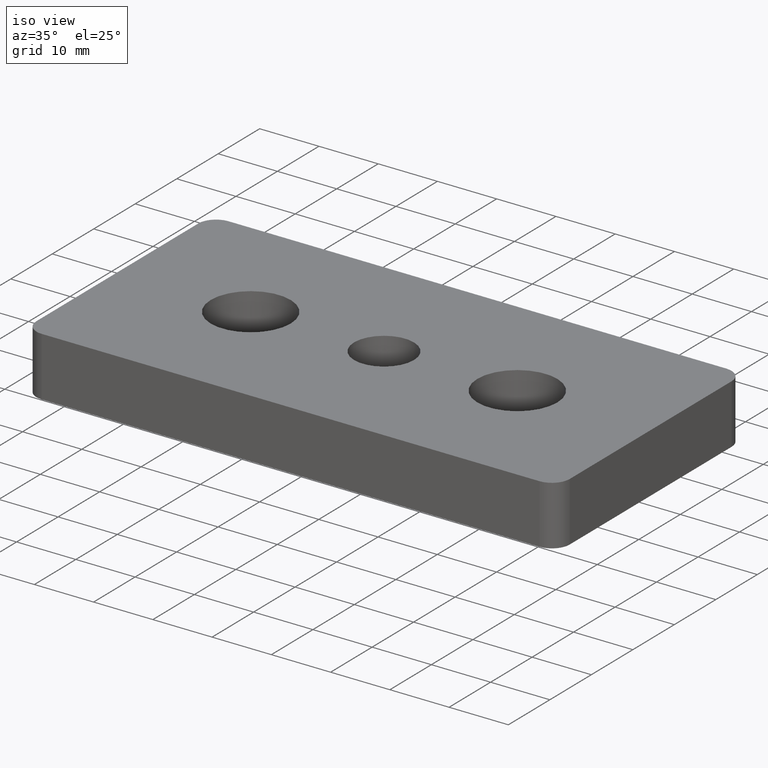
[diagram: clean part render]
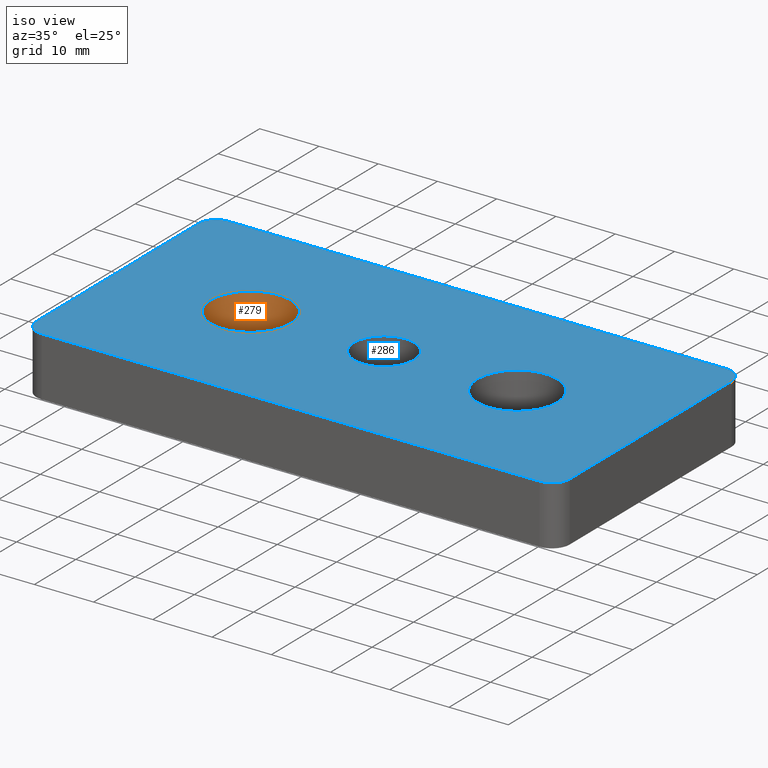
[diagram: same view with the hole feature highlighted: cylindrical wall and planar end face, labeled with their STEP entity ids]
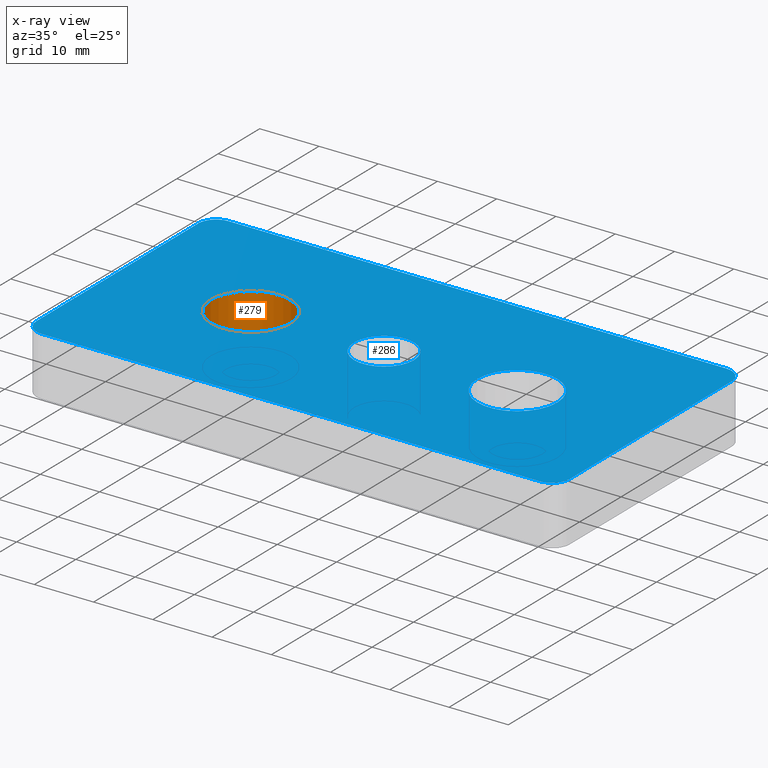
[diagram: x-ray of the same camera — body ghosted, the hole faces saturated]
A machine part, iso view. The highlighted faces form one hole feature of diameter 13.5 mm: the cylindrical wall (entity #279, orange) and its adjacent planar end face (entity #286, blue) — they share a circular edge in the B-rep.
The next image is the same camera in x-ray (body ghosted, the hole faces saturated) — the bore reads through the body.
Wall:
#19=FACE_BOUND('',#67,.T.);
#45=FACE_OUTER_BOUND('',#66,.T.);
#66=EDGE_LOOP('',(#234));
#67=EDGE_LOOP('',(#235));
#126=CIRCLE('',#309,6.75);
#128=CIRCLE('',#312,6.75);
#152=VERTEX_POINT('',#467);
#154=VERTEX_POINT('',#472);
#185=EDGE_CURVE('',#152,#152,#126,.T.);
#187=EDGE_CURVE('',#154,#154,#128,.T.);
#234=ORIENTED_EDGE('',*,*,#187,.F.);
#235=ORIENTED_EDGE('',*,*,#185,.F.);
#265=CYLINDRICAL_SURFACE('',#311,6.75);
#279=ADVANCED_FACE('',(#45,#19),#265,.F.);
#309=AXIS2_PLACEMENT_3D('',#468,#381,#382);
#311=AXIS2_PLACEMENT_3D('',#471,#385,#386);
#312=AXIS2_PLACEMENT_3D('',#473,#387,#388);
#381=DIRECTION('center_axis',(0.,0.,1.));
#382=DIRECTION('ref_axis',(1.,0.,0.));
#385=DIRECTION('center_axis',(0.,0.,1.));
#386=DIRECTION('ref_axis',(1.,0.,0.));
#387=DIRECTION('center_axis',(0.,0.,-1.));
#388=DIRECTION('ref_axis',(1.,0.,0.));
#467=CARTESIAN_POINT('',(-15.75,0.,1.5));
#468=CARTESIAN_POINT('Origin',(-22.5,0.,1.5));
#471=CARTESIAN_POINT('Origin',(-22.5,0.,5.75));
#472=CARTESIAN_POINT('',(-15.75,0.,10.));
#473=CARTESIAN_POINT('Origin',(-22.5,0.,10.));
End face:
#25=FACE_BOUND('',#80,.T.);
#26=FACE_BOUND('',#81,.T.);
#27=FACE_BOUND('',#82,.T.);
#35=PLANE('',#323);
#52=FACE_OUTER_BOUND('',#79,.T.);
#79=EDGE_LOOP('',(#250,#251,#252,#253,#254,#255,#256,#257));
#80=EDGE_LOOP('',(#258));
#81=EDGE_LOOP('',(#259));
#82=EDGE_LOOP('',(#260));
#87=LINE('',#427,#103);
#93=LINE('',#453,#109);
#96=LINE('',#461,#112);
#98=LINE('',#488,#114);
#103=VECTOR('',#338,39.);
#109=VECTOR('',#364,84.);
#112=VECTOR('',#373,84.);
#114=VECTOR('',#409,39.);
#115=CIRCLE('',#290,3.);
#123=CIRCLE('',#301,3.);
#124=CIRCLE('',#304,3.);
#125=CIRCLE('',#307,3.);
#128=CIRCLE('',#312,6.75);
#131=CIRCLE('',#318,6.75);
#132=CIRCLE('',#321,5.053);
#133=VERTEX_POINT('',#414);
#134=VERTEX_POINT('',#415);
#138=VERTEX_POINT('',#425);
#147=VERTEX_POINT('',#447);
#148=VERTEX_POINT('',#451);
#149=VERTEX_POINT('',#455);
#150=VERTEX_POINT('',#456);
#151=VERTEX_POINT('',#463);
#154=VERTEX_POINT('',#472);
#157=VERTEX_POINT('',#481);
#158=VERTEX_POINT('',#485);
#159=EDGE_CURVE('',#133,#134,#115,.T.);
#165=EDGE_CURVE('',#133,#138,#87,.T.);
#175=EDGE_CURVE('',#147,#138,#123,.T.);
#178=EDGE_CURVE('',#147,#148,#93,.T.);
#179=EDGE_CURVE('',#149,#150,#124,.T.);
#182=EDGE_CURVE('',#149,#134,#96,.T.);
#183=EDGE_CURVE('',#151,#148,#125,.T.);
#187=EDGE_CURVE('',#154,#154,#128,.T.);
#190=EDGE_CURVE('',#157,#157,#131,.T.);
#191=EDGE_CURVE('',#158,#158,#132,.T.);
#192=EDGE_CURVE('',#151,#150,#98,.T.);
#250=ORIENTED_EDGE('',*,*,#159,.F.);
#251=ORIENTED_EDGE('',*,*,#165,.T.);
#252=ORIENTED_EDGE('',*,*,#175,.F.);
#253=ORIENTED_EDGE('',*,*,#178,.T.);
#254=ORIENTED_EDGE('',*,*,#183,.F.);
#255=ORIENTED_EDGE('',*,*,#192,.T.);
#256=ORIENTED_EDGE('',*,*,#179,.F.);
#257=ORIENTED_EDGE('',*,*,#182,.T.);
#258=ORIENTED_EDGE('',*,*,#187,.T.);
#259=ORIENTED_EDGE('',*,*,#190,.T.);
#260=ORIENTED_EDGE('',*,*,#191,.T.);
#286=ADVANCED_FACE('',(#52,#25,#26,#27),#35,.T.);
#290=AXIS2_PLACEMENT_3D('',#416,#328,#329);
#301=AXIS2_PLACEMENT_3D('',#448,#358,#359);
#304=AXIS2_PLACEMENT_3D('',#457,#367,#368);
#307=AXIS2_PLACEMENT_3D('',#464,#376,#377);
#312=AXIS2_PLACEMENT_3D('',#473,#387,#388);
#318=AXIS2_PLACEMENT_3D('',#482,#399,#400);
#321=AXIS2_PLACEMENT_3D('',#486,#405,#406);
#323=AXIS2_PLACEMENT_3D('',#489,#410,#411);
#328=DIRECTION('center_axis',(0.,0.,-1.));
#329=DIRECTION('ref_axis',(0.707106781186549,-0.707106781186546,0.));
#338=DIRECTION('',(0.,1.,0.));
#358=DIRECTION('center_axis',(0.,0.,-1.));
#359=DIRECTION('ref_axis',(0.707106781186549,0.707106781186546,0.));
#364=DIRECTION('',(-1.,0.,0.));
#367=DIRECTION('center_axis',(0.,0.,-1.));
#368=DIRECTION('ref_axis',(-0.707106781186549,-0.707106781186546,0.));
#373=DIRECTION('',(1.,0.,0.));
#376=DIRECTION('center_axis',(0.,0.,-1.));
#377=DIRECTION('ref_axis',(-0.707106781186549,0.707106781186546,0.));
#387=DIRECTION('center_axis',(0.,0.,-1.));
#388=DIRECTION('ref_axis',(1.,0.,0.));
#399=DIRECTION('center_axis',(0.,0.,-1.));
#400=DIRECTION('ref_axis',(1.,0.,0.));
#405=DIRECTION('center_axis',(0.,0.,-1.));
#406=DIRECTION('ref_axis',(1.,0.,0.));
#409=DIRECTION('',(0.,-1.,0.));
#410=DIRECTION('center_axis',(0.,0.,1.));
#411=DIRECTION('ref_axis',(1.,0.,0.));
#414=CARTESIAN_POINT('',(45.,-19.5,10.));
#415=CARTESIAN_POINT('',(42.,-22.5,10.));
#416=CARTESIAN_POINT('Origin',(42.,-19.5,10.));
#425=CARTESIAN_POINT('',(45.,19.5,10.));
#427=CARTESIAN_POINT('',(45.,22.5,10.));
#447=CARTESIAN_POINT('',(42.,22.5,10.));
#448=CARTESIAN_POINT('Origin',(42.,19.5,10.));
#451=CARTESIAN_POINT('',(-42.,22.5,10.));
#453=CARTESIAN_POINT('',(-45.,22.5,10.));
#455=CARTESIAN_POINT('',(-42.,-22.5,10.));
#456=CARTESIAN_POINT('',(-45.,-19.5,10.));
#457=CARTESIAN_POINT('Origin',(-42.,-19.5,10.));
#461=CARTESIAN_POINT('',(45.,-22.5,10.));
#463=CARTESIAN_POINT('',(-45.,19.5,10.));
#464=CARTESIAN_POINT('Origin',(-42.,19.5,10.));
#472=CARTESIAN_POINT('',(-15.75,0.,10.));
#473=CARTESIAN_POINT('Origin',(-22.5,0.,10.));
#481=CARTESIAN_POINT('',(29.25,0.,10.));
#482=CARTESIAN_POINT('Origin',(22.5,0.,10.));
#485=CARTESIAN_POINT('',(5.053,0.,10.));
#486=CARTESIAN_POINT('Origin',(0.,0.,10.));
#488=CARTESIAN_POINT('',(-45.,-22.5,10.));
#489=CARTESIAN_POINT('Origin',(0.,0.,10.));